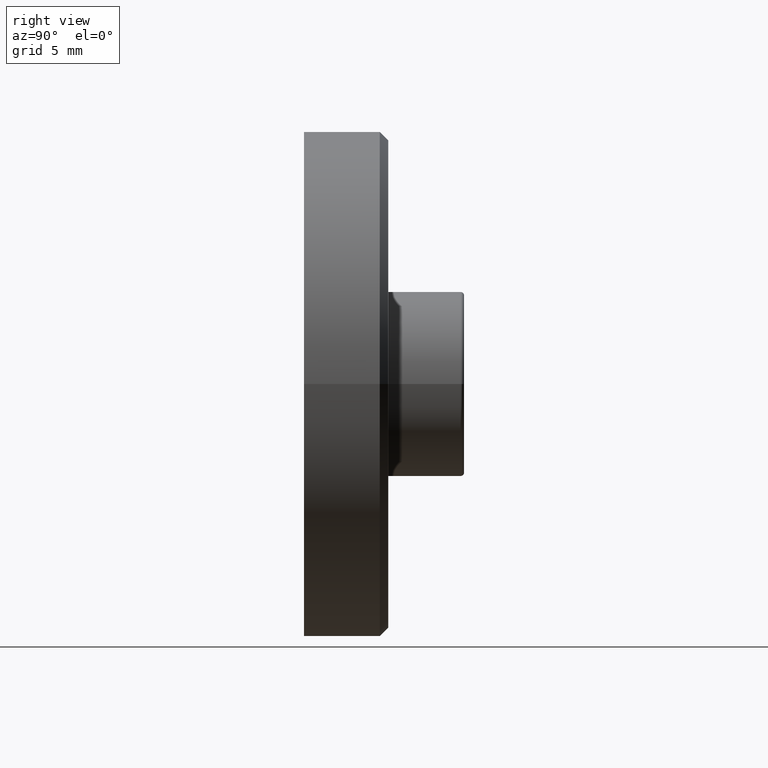
[diagram: clean part render]
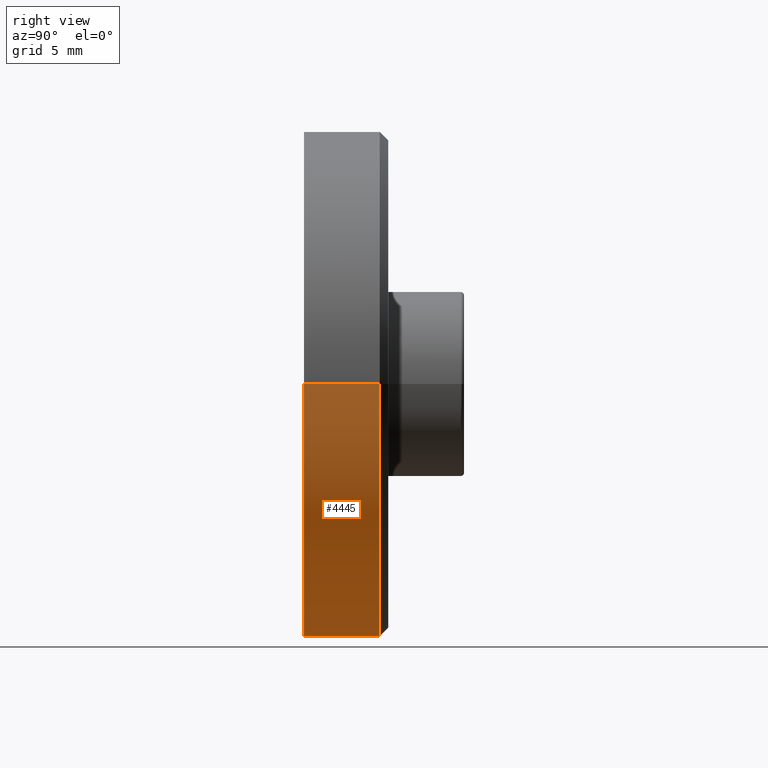
[diagram: same view with one face highlighted and labeled with its STEP entity id]
A machine part, right view. The second image highlights one B-rep face of the part: STEP entity #4445.
In plain terms, the highlighted cylindrical surface (partial cylindrical patch) has radius 15 mm, axis along (0, -1, -0).
Its self-contained STEP definition (entity closure, byte-faithful):
#112 = FACE_OUTER_BOUND ( 'NONE', #2467, .T. ) ;
#552 = EDGE_CURVE ( 'NONE', #11524, #1127, #12204, .T. ) ;
#1127 = VERTEX_POINT ( 'NONE', #7260 ) ;
#1680 = CARTESIAN_POINT ( 'NONE',  ( 15.00000000000000000, 3.000000000000001332, 0.000000000000000000 ) ) ;
#1979 = AXIS2_PLACEMENT_3D ( 'NONE', #9803, #3416, #13078 ) ;
#2467 = EDGE_LOOP ( 'NONE', ( #10027, #8189, #8738, #3743 ) ) ;
#3416 = DIRECTION ( 'NONE',  ( 1.884071998688235002E-16, -1.000000000000000000, -0.000000000000000000 ) ) ;
#3466 = EDGE_CURVE ( 'NONE', #11967, #8104, #13657, .T. ) ;
#3606 = CIRCLE ( 'NONE', #8535, 15.00000000000000000 ) ;
#3641 = VECTOR ( 'NONE', #6464, 1000.000000000000000 ) ;
#3743 = ORIENTED_EDGE ( 'NONE', *, *, #5546, .F. ) ;
#3843 = CARTESIAN_POINT ( 'NONE',  ( 15.00000000000000000, -2.096580849270600606E-16, 0.000000000000000000 ) ) ;
#4445 = ADVANCED_FACE ( 'NONE', ( #112 ), #11047, .T. ) ;
#4491 = CIRCLE ( 'NONE', #11219, 15.00000000000000000 ) ;
#4925 = DIRECTION ( 'NONE',  ( -1.000000000000000000, -1.734723475976807094E-16, 0.000000000000000000 ) ) ;
#5002 = CARTESIAN_POINT ( 'NONE',  ( 14.99999999999999822, 4.499999999999999112, 0.000000000000000000 ) ) ;
#5109 = CARTESIAN_POINT ( 'NONE',  ( -1.017398879291646225E-15, 4.499999999999996447, 0.000000000000000000 ) ) ;
#5546 = EDGE_CURVE ( 'NONE', #1127, #8104, #4491, .T. ) ;
#6464 = DIRECTION ( 'NONE',  ( 1.884071998688235002E-16, -1.000000000000000000, -0.000000000000000000 ) ) ;
#7053 = DIRECTION ( 'NONE',  ( 1.884071998688235002E-16, -1.000000000000000000, -0.000000000000000000 ) ) ;
#7260 = CARTESIAN_POINT ( 'NONE',  ( -15.00000000000000000, -5.861874080991765386E-15, 1.836970198721029589E-15 ) ) ;
#8104 = VERTEX_POINT ( 'NONE', #3843 ) ;
#8189 = ORIENTED_EDGE ( 'NONE', *, *, #10422, .T. ) ;
#8261 = CARTESIAN_POINT ( 'NONE',  ( -15.00000000000000355, 4.499999999999993783, 1.836970198721029983E-15 ) ) ;
#8535 = AXIS2_PLACEMENT_3D ( 'NONE', #5109, #12769, #4925 ) ;
#8738 = ORIENTED_EDGE ( 'NONE', *, *, #3466, .T. ) ;
#8999 = DIRECTION ( 'NONE',  ( 1.000000000000000000, 1.884071998688234755E-16, 0.000000000000000000 ) ) ;
#9097 = CARTESIAN_POINT ( 'NONE',  ( -1.695664798819406596E-16, -3.035766082959412415E-15, 0.000000000000000000 ) ) ;
#9803 = CARTESIAN_POINT ( 'NONE',  ( -7.347880794884114806E-16, 2.999999999999998224, 0.000000000000000000 ) ) ;
#10027 = ORIENTED_EDGE ( 'NONE', *, *, #552, .F. ) ;
#10422 = EDGE_CURVE ( 'NONE', #11524, #11967, #3606, .T. ) ;
#11047 = CYLINDRICAL_SURFACE ( 'NONE', #1979, 15.00000000000000000 ) ;
#11219 = AXIS2_PLACEMENT_3D ( 'NONE', #9097, #12425, #8999 ) ;
#11524 = VERTEX_POINT ( 'NONE', #8261 ) ;
#11588 = VECTOR ( 'NONE', #7053, 1000.000000000000000 ) ;
#11683 = CARTESIAN_POINT ( 'NONE',  ( -15.00000000000000000, 2.999999999999995115, 1.836970198721029589E-15 ) ) ;
#11967 = VERTEX_POINT ( 'NONE', #5002 ) ;
#12204 = LINE ( 'NONE', #11683, #3641 ) ;
#12425 = DIRECTION ( 'NONE',  ( 1.884071998688235002E-16, -1.000000000000000000, -0.000000000000000000 ) ) ;
#12769 = DIRECTION ( 'NONE',  ( 1.884071998688233276E-16, -1.000000000000000000, -0.000000000000000000 ) ) ;
#13078 = DIRECTION ( 'NONE',  ( 1.000000000000000000, 2.023844055306275026E-16, 0.000000000000000000 ) ) ;
#13657 = LINE ( 'NONE', #1680, #11588 ) ;